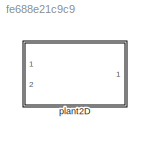
MODEL slx_fe688e21c9c9
KIND library
CONFIG AbsTol = auto
CONFIG EnableMultiTasking = off
CONFIG FixedStep = auto
CONFIG MaxStep = auto
CONFIG MinStep = auto
CONFIG RelTol = 1e-3
CONFIG SampleTimeConstraint = Unconstrained
CONFIG Solver = VariableStepAuto
CONFIG SolverName = VariableStepAuto
CONFIG StartTime = 0.0
CONFIG StopTime = 10.0
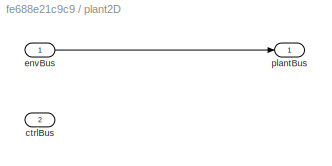
BLOCK [SubSystem] plant2D
  Ports = [2, 1]
  RequestExecContextInheritance = off
BLOCK [Inport] plant2D/ctrlBus
  Port = 2
BLOCK [Inport] plant2D/envBus
BLOCK [Outport] plant2D/plantBus
LINE plant2D/envBus:1 -> plant2D/plantBus:1
